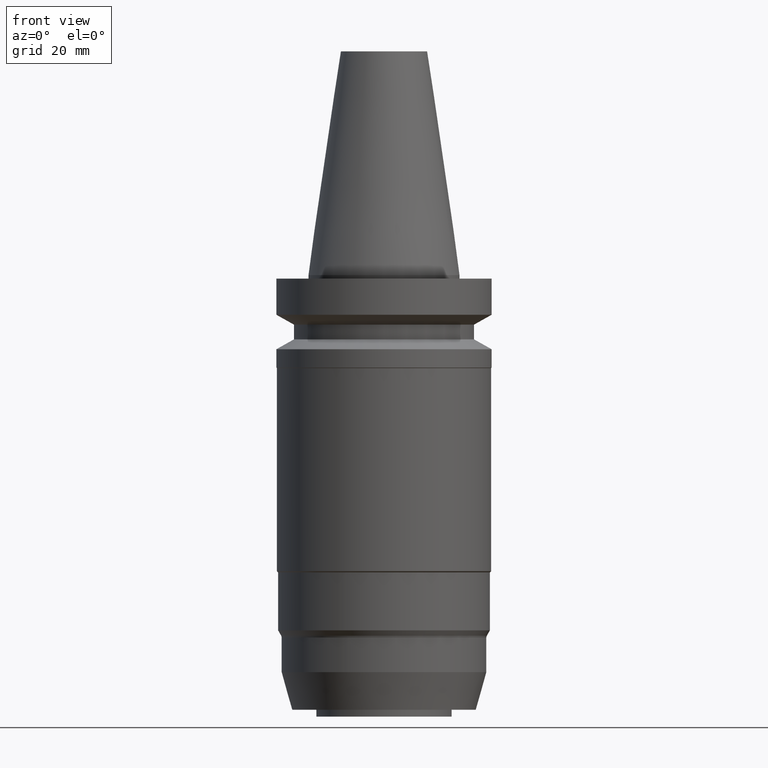
[diagram: clean part render]
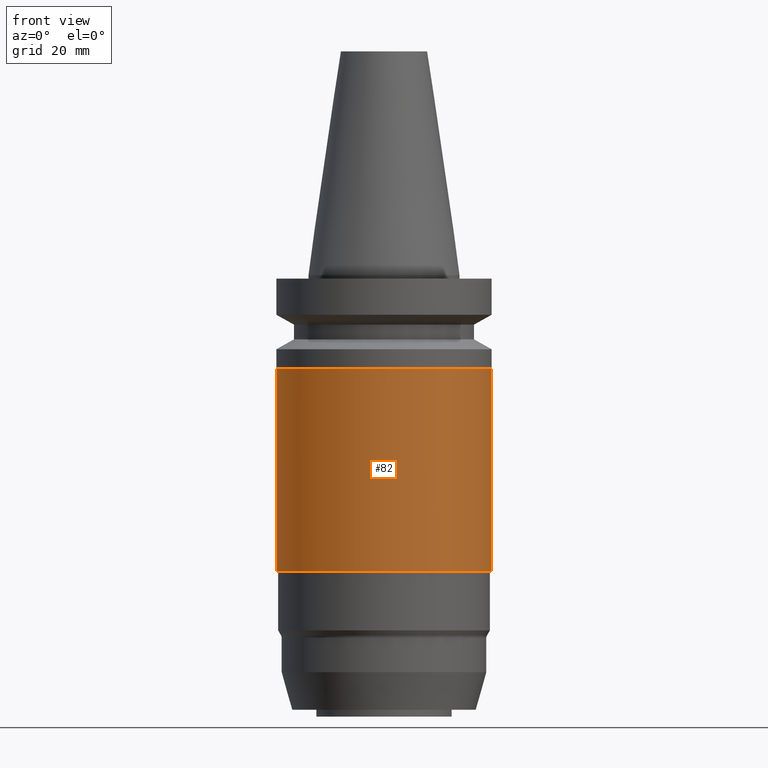
[diagram: same view with one face highlighted and labeled with its STEP entity id]
A machine part, front view. The second image highlights one B-rep face of the part: STEP entity #82.
In plain terms, the highlighted cylindrical surface (bore or boss wall) has radius 31.35 mm, axis along (0, -0, -1).
Its self-contained STEP definition (entity closure, byte-faithful):
#82=ADVANCED_FACE('Unnamed[1]',(#208,#209),#210,.T.);
#125=EDGE_CURVE('Unnamed[1]',#277,#277,#278,.T.);
#163=EDGE_CURVE('Unnamed[1]',#336,#336,#337,.T.);
#208=FACE_BOUND('',#380,.T.);
#209=FACE_BOUND('',#381,.T.);
#210=CYLINDRICAL_SURFACE('',#382,31.349999999999);
#277=VERTEX_POINT('',#466);
#278=CIRCLE('',#467,31.3499999999986);
#336=VERTEX_POINT('',#539);
#337=CIRCLE('',#540,31.3499999999993);
#380=EDGE_LOOP('',(#572));
#381=EDGE_LOOP('',(#573));
#382=AXIS2_PLACEMENT_3D('',#574,#575,#576);
#466=CARTESIAN_POINT('',(5.29659740631239E-015,31.3499999999987,-86.5000000000014));
#467=AXIS2_PLACEMENT_3D('',#651,#652,#653);
#539=CARTESIAN_POINT('',(1.66332835952535E-015,31.3499999999994,-27.1642135623663));
#540=AXIS2_PLACEMENT_3D('',#715,#716,#717);
#572=ORIENTED_EDGE('',*,*,#125,.F.);
#573=ORIENTED_EDGE('',*,*,#163,.T.);
#574=CARTESIAN_POINT('',(3.47996288291887E-015,7.01102572256843E-014,-56.8321067811839));
#575=DIRECTION('',(6.12323399573677E-017,-5.72747493516633E-017,-1.0));
#576=DIRECTION('',(-1.32008580750217E-033,1.0,-5.72747493516633E-017));
#651=CARTESIAN_POINT('',(5.29659740631239E-015,6.84110360777828E-014,-86.5000000000014));
#652=DIRECTION('',(6.12323399573677E-017,-5.7274749351664E-017,-1.0));
#653=DIRECTION('',(-1.32008580749074E-033,1.0,-5.7274749351664E-017));
#715=CARTESIAN_POINT('',(1.66332835952535E-015,7.18094783735858E-014,-27.1642135623663));
#716=DIRECTION('',(6.12323399573677E-017,-5.72747493516627E-017,-1.0));
#717=DIRECTION('',(-1.32008580750215E-033,1.0,-5.72747493516627E-017));